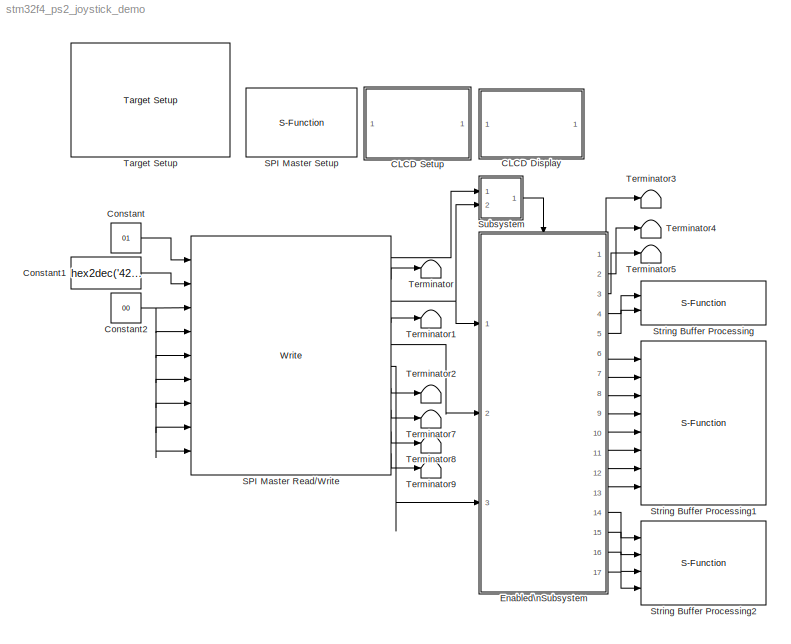
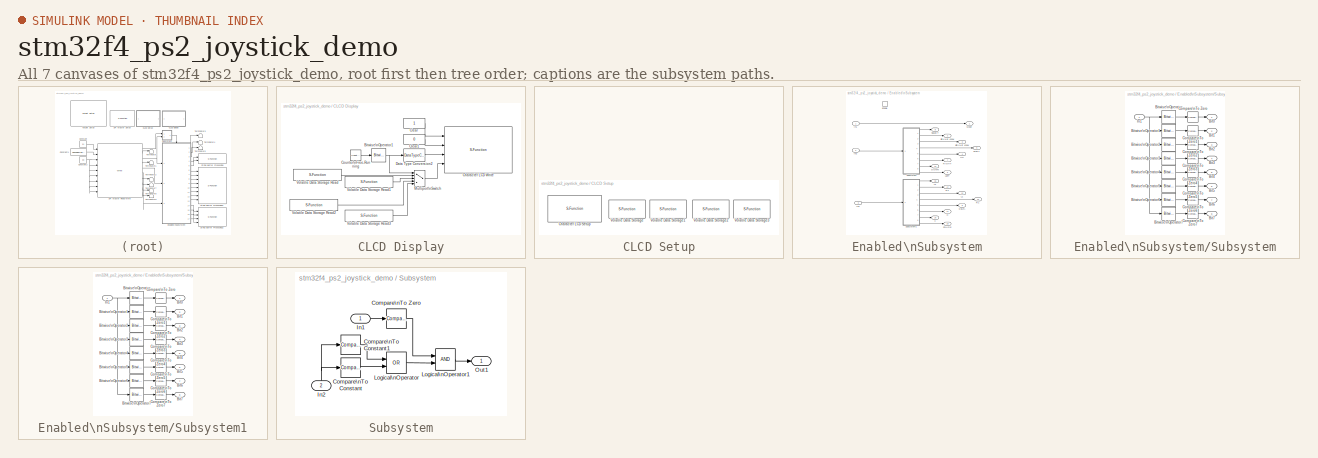
[diagram: thumbnail index - all 7 canvases of the model, root first then tree order]
MODEL stm32f4_ps2_joystick_demo
KIND model
CONFIG PreLoadFcn = waijung.modelPreload; % Required for working with Waijung Blockset. Do not remove.
BLOCK [SubSystem] CLCD Display
  FunctionWithSeparateData = off
  MaskHideContents = off
  MinAlgLoopOccurrences = off
  Opaque = off
  Ports = []
  PropExecContextOutsideSubsystem = off
  RTWSystemCode = Auto
  RequestExecContextInheritance = off
BLOCK [Reference] CLCD Display/Bitwise\nOperator1  REF=simulink/Logic and Bit\nOperations/Bitwise\nOperator
  BitMask = bin2dec('11')
  BitMaskRealWorld = Stored Integer
  NumInputPorts = 1
  Ports = [1, 1]
  SourceBlock = simulink/Logic and Bit\nOperations/Bitwise\nOperator
  SourceType = Bitwise Operator
  UseBitMask = on
  logicop = AND
BLOCK [S-Function] CLCD Display/Character LCD Write
  EnableBusSupport = off
  FunctionName = amg_clcd
  MaskCallbackString = amg_clcd_callback('configuration');||||||||||||||||amg_clcd_callback('usestringbuffer');||amg_clcd_callback('varname');|||amg_clcd_callback('confstr');|amg_clcd_callback('sampletime');|amg_clcd_callback('sampletimestr');|amg_clcd_callback('blockid');
  MaskDescription = Note for cmd:\n1 - Clear specified LCD line display before write data to LCD.\nOtherwise (e.g. 0) - Write data without clearing LCD Line.\n\nPosition:\nx = 0, First Character (from left to right)\ny = 0, Top Line
  MaskDisplay = text(0.5, 0.5, 'Module: CLCD1 (Write)\\nTs (sec): 0.01','ver','middle','hor','center');port_label('input', 1,'cmd');port_label('input', 2,'xpos');port_label('input', 3,'ypos');port_label('input', 4,'str');
  MaskEnableString = on,on,on,off,off,on,on,on,on,on,on,on,on,on,on,on,on,on,off,off,off,on,on,on,on
  MaskHelp = web(fullfile(waijungdocroot,'amg_clcd_write.htm'), '-browser')
  MaskIconFrame = on
  MaskIconOpaque = on
  MaskIconRotate = none
  MaskIconUnits = normalized
  MaskInitialization = amg_clcd_callback('init');
  MaskPortRotate = default
  MaskPromptString = Configuration:|Module:|LCD model:|Interface:|Number of lines:|Number of columns:|GPIO Output type:|GPIO control port:|GPIO control pin, RS:|GPIO control pin, RW:|GPIO control pin, EN:|GPIO data D[7:4] port|GPIO data pin, D4:|GPIO data pin, D5:|GPIO data pin, D6:|GPIO data pin, D7:|Use string buffer|String buffer|Variable name|Input type array|Output type array|Configuration string|Sample time (sec...<+46ch>
  MaskSelfModifiable = on
  MaskStyleString = popup(Setup|Transaction),popup(1|2|3|4),popup(amg CLCD Std),popup(4-bits),edit,edit,popup(Push-pull|Open-drain),popup(A|B|C|D|E|F|G|H|I),popup(0|1|2|3|4|5|6|7|8|9|10|11|12|13|14|15),popup(0|1|2|3|4|5|6|7|8|9|10|11|12|13|14|15),popup(0|1|2|3|4|5|6|7|8|9|10|11|12|13|14|15),popup(A|B|C|D|E|F|G|H|I),popup(0|1|2|3|4|5|6|7|8|9|10|11|12|13|14|15),popup(0|1|2|3|4|5|6|7|8|9|10|11|12|13|14|15),popup(0|1|2|3...<+163ch>
  MaskTabNameString = ,,,,,,,,,,,,,,,,,,,,,,,,
  MaskToolTipString = on,on,on,on,on,on,on,on,on,on,on,on,on,on,on,on,on,on,on,on,on,on,on,on,on
  MaskTunableValueString = off,off,off,off,off,off,off,off,off,off,off,off,off,off,off,off,off,off,off,off,off,off,off,off,off
  MaskType = amg_clcd
  MaskValueString = Transaction|1|amg CLCD Std|4-bits|4|20|Push-pull|E|15|13|11|A|7|5|3|1|off|lcdline1|CLCDSetupVolatileDataStorage_lcdline1|[4 -1 -1 -1 -1]|[0]|[\"4\",\"4\",\"20\",\"PP\",\"E\",\"15\",\"11\",\"13\",\"\",\"A\",\"\",\"\",\"\",\"\",\"7\",\"5\",\"3\",\"1\",\"0\",\"\",\"1\",\"0\",\"0\",\"0\",\"1\",\"0\",\"0\",\"0\",\"0\",\"stm32f4\"]|-1|0.01|CLCDDisplayCharacterLCDWrite
  MaskVarAliasString = ,,,,,,,,,,,,,,,,,,,,,,,,
  MaskVariables = configuration=&1;module=&2;model=&3;interface=&4;linecount=@5;columncount=@6;gpiotype=&7;controlport=&8;control_rs=&9;control_rw=&10;control_en=&11;dataport=&12;data0=&13;data1=&14;data2=&15;data3=&16;usestringbuffer=@17;stringbuffer=&18;varname=&19;inputtypearray=@20;outputtypearray=@21;confstr=&22;sampletime=@23;sampletimestr=&24;blockid=&25;
  MaskVisibilityString = off,on,off,off,off,off,off,off,off,off,off,off,off,off,off,off,on,off,off,off,off,off,on,off,off
  Parameters = module,configuration,inputtypearray,outputtypearray,confstr,sampletime,sampletimestr,blockid
  Ports = [4]
BLOCK [Constant] CLCD Display/Clear
  OutDataType = fixdt(1, 16)
  OutDataTypeMode = uint8
  OutDataTypeStr = uint8
  OutScaling = 2^0
BLOCK [Constant] CLCD Display/Clear1
  OutDataType = fixdt(1, 16)
  OutDataTypeMode = uint8
  OutDataTypeStr = uint8
  OutScaling = 2^0
  Value = 0
BLOCK [Reference] CLCD Display/Counter\nFree-Running  REF=simulink/Sources/Counter\nFree-Running
  FunctionWithSeparateData = off
  NumBits = 16
  Ports = [0, 1]
  RTWMemSecDataConstants = Inherit from model
  RTWMemSecDataInternal = Inherit from model
  RTWMemSecDataParameters = Inherit from model
  RTWMemSecFuncExecute = Inherit from model
  RTWMemSecFuncInitTerm = Inherit from model
  ShowPortLabels = FromPortIcon
  SourceBlock = simulink/Sources/Counter\nFree-Running
  SourceType = Counter Free-Running
  SystemSampleTime = -1
  tsamp = -1
BLOCK [DataTypeConversion] CLCD Display/Data Type Conversion2
  OutDataType = fixdt(1, 16)
  OutScaling = 2^0
  RndMeth = Floor
  SaturateOnIntegerOverflow = off
BLOCK [MultiPortSwitch] CLCD Display/Multiport\nSwitch
  InputSameDT = off
  Inputs = 4
  OutDataType = fixdt(1, 16)
  OutScaling = 2^0
  Ports = [5, 1]
  SaturateOnIntegerOverflow = off
  zeroidx = on
BLOCK [S-Function] CLCD Display/Volatile Data Storage Read
  EnableBusSupport = off
  FunctionName = waijung_vdata_read
  MaskCallbackString = waijung_vdata_read_callback('storagename');|waijung_vdata_read_callback('varname');|waijung_vdata_read_callback('sampletime');|waijung_vdata_read_callback('sampletimestr');|waijung_vdata_read_callback('blockid');|waijung_vdata_read_callback('storagetype');|  <repeated x4 — deduplicated; at blocks: Volatile Data Storage Read, Volatile Data Storage Read1, Volatile Data Storage Read2, Volatile Data Storage Read3>
  MaskDescription = This block implements read data from a buffer.
  MaskDisplay = text(0.05, 0.5, 'Buffer: lcdline1','ver','middle','hor','left');port_label('output',1,'D1(string)')
  MaskEnableString = on,off,on,off,off,on,on
  MaskHelp = web(fullfile(waijungdocroot,'waijung_vdata_read.htm'))
  MaskIconFrame = on
  MaskIconOpaque = on
  MaskIconRotate = none
  MaskIconUnits = normalized
  MaskInitialization = waijung_vdata_read_callback('init');
  MaskPortRotate = default
  MaskPromptString = Storage Name|Variable name|Sample time (sec)|Compiled sample time (sec) in string|BlockID|Data type|Data type string
  MaskSelfModifiable = on
  MaskStyleString = popup(lcdline1|lcdline2|lcdline3|lcdline4),edit,edit,edit,edit,edit,edit
  MaskTabNameString = ,,,,,,
  MaskToolTipString = on,on,on,on,on,on,on
  MaskTunableValueString = off,off,off,off,off,off,off
  MaskType = waijung_vdata_read
  MaskValueString = lcdline1|CLCDSetupVolatileDataStorage_lcdline1|inf|0.01|CLCDDisplayVolatileDataStorageRead|string|uint32_t
  MaskVarAliasString = ,,,,,,
  MaskVariables = storagename=&1;varname=&2;sampletime=@3;sampletimestr=&4;blockid=&5;storagetype=&6;storagetypestr=&7;
  MaskVisibilityString = on,off,on,off,off,off,off
  Parameters = storagename,varname,sampletime,sampletimestr,blockid,storagetype,storagetypestr
  Ports = [0, 1]
BLOCK [S-Function] CLCD Display/Volatile Data Storage Read1
  EnableBusSupport = off
  FunctionName = waijung_vdata_read
  MaskDescription = This block implements read data from a buffer.
  MaskDisplay = text(0.05, 0.5, 'Buffer: lcdline2','ver','middle','hor','left');port_label('output',1,'D1(string)')
  MaskEnableString = on,off,on,off,off,on,on
  MaskHelp = web(fullfile(waijungdocroot,'waijung_vdata_read.htm'))
  MaskIconFrame = on
  MaskIconOpaque = on
  MaskIconRotate = none
  MaskIconUnits = normalized
  MaskInitialization = waijung_vdata_read_callback('init');
  MaskPortRotate = default
  MaskPromptString = Storage Name|Variable name|Sample time (sec)|Compiled sample time (sec) in string|BlockID|Data type|Data type string
  MaskSelfModifiable = on
  MaskStyleString = popup(lcdline1|lcdline2|lcdline3|lcdline4),edit,edit,edit,edit,edit,edit
  MaskTabNameString = ,,,,,,
  MaskToolTipString = on,on,on,on,on,on,on
  MaskTunableValueString = off,off,off,off,off,off,off
  MaskType = waijung_vdata_read
  MaskValueString = lcdline2|CLCDSetupVolatileDataStorage1_lcdline2|inf|0.01|CLCDDisplayVolatileDataStorageRead1|string|uint32_t
  MaskVarAliasString = ,,,,,,
  MaskVariables = storagename=&1;varname=&2;sampletime=@3;sampletimestr=&4;blockid=&5;storagetype=&6;storagetypestr=&7;
  MaskVisibilityString = on,off,on,off,off,off,off
  Parameters = storagename,varname,sampletime,sampletimestr,blockid,storagetype,storagetypestr
  Ports = [0, 1]
BLOCK [S-Function] CLCD Display/Volatile Data Storage Read2
  EnableBusSupport = off
  FunctionName = waijung_vdata_read
  MaskDescription = This block implements read data from a buffer.
  MaskDisplay = text(0.05, 0.5, 'Buffer: lcdline3','ver','middle','hor','left');port_label('output',1,'D1(string)')
  MaskEnableString = on,off,on,off,off,on,on
  MaskHelp = web(fullfile(waijungdocroot,'waijung_vdata_read.htm'))
  MaskIconFrame = on
  MaskIconOpaque = on
  MaskIconRotate = none
  MaskIconUnits = normalized
  MaskInitialization = waijung_vdata_read_callback('init');
  MaskPortRotate = default
  MaskPromptString = Storage Name|Variable name|Sample time (sec)|Compiled sample time (sec) in string|BlockID|Data type|Data type string
  MaskSelfModifiable = on
  MaskStyleString = popup(lcdline1|lcdline2|lcdline3|lcdline4),edit,edit,edit,edit,edit,edit
  MaskTabNameString = ,,,,,,
  MaskToolTipString = on,on,on,on,on,on,on
  MaskTunableValueString = off,off,off,off,off,off,off
  MaskType = waijung_vdata_read
  MaskValueString = lcdline3|CLCDSetupVolatileDataStorage2_lcdline3|inf|0.01|CLCDDisplayVolatileDataStorageRead2|string|uint32_t
  MaskVarAliasString = ,,,,,,
  MaskVariables = storagename=&1;varname=&2;sampletime=@3;sampletimestr=&4;blockid=&5;storagetype=&6;storagetypestr=&7;
  MaskVisibilityString = on,off,on,off,off,off,off
  Parameters = storagename,varname,sampletime,sampletimestr,blockid,storagetype,storagetypestr
  Ports = [0, 1]
BLOCK [S-Function] CLCD Display/Volatile Data Storage Read3
  EnableBusSupport = off
  FunctionName = waijung_vdata_read
  MaskDescription = This block implements read data from a buffer.
  MaskDisplay = text(0.05, 0.5, 'Buffer: lcdline4','ver','middle','hor','left');port_label('output',1,'D1(string)')
  MaskEnableString = on,off,on,off,off,on,on
  MaskHelp = web(fullfile(waijungdocroot,'waijung_vdata_read.htm'))
  MaskIconFrame = on
  MaskIconOpaque = on
  MaskIconRotate = none
  MaskIconUnits = normalized
  MaskInitialization = waijung_vdata_read_callback('init');
  MaskPortRotate = default
  MaskPromptString = Storage Name|Variable name|Sample time (sec)|Compiled sample time (sec) in string|BlockID|Data type|Data type string
  MaskSelfModifiable = on
  MaskStyleString = popup(lcdline1|lcdline2|lcdline3|lcdline4),edit,edit,edit,edit,edit,edit
  MaskTabNameString = ,,,,,,
  MaskToolTipString = on,on,on,on,on,on,on
  MaskTunableValueString = off,off,off,off,off,off,off
  MaskType = waijung_vdata_read
  MaskValueString = lcdline4|CLCDSetupVolatileDataStorage3_lcdline4|inf|0.01|CLCDDisplayVolatileDataStorageRead3|string|uint32_t
  MaskVarAliasString = ,,,,,,
  MaskVariables = storagename=&1;varname=&2;sampletime=@3;sampletimestr=&4;blockid=&5;storagetype=&6;storagetypestr=&7;
  MaskVisibilityString = on,off,on,off,off,off,off
  Parameters = storagename,varname,sampletime,sampletimestr,blockid,storagetype,storagetypestr
  Ports = [0, 1]
BLOCK [SubSystem] CLCD Setup
  FunctionWithSeparateData = off
  MaskHideContents = off
  MinAlgLoopOccurrences = off
  Opaque = off
  Ports = []
  PropExecContextOutsideSubsystem = off
  RTWSystemCode = Auto
  RequestExecContextInheritance = off
BLOCK [S-Function] CLCD Setup/Character LCD Setup
  EnableBusSupport = off
  FunctionName = amg_clcd
  MaskCallbackString = amg_clcd_callback('configuration');||||||||||||||||amg_clcd_callback('usestringbuffer');||amg_clcd_callback('varname');|||amg_clcd_callback('confstr');|amg_clcd_callback('sampletime');|amg_clcd_callback('sampletimestr');|amg_clcd_callback('blockid');
  MaskDisplay = text(0.5, 0.5, 'Module: CLCD1 (Setup)\\nInterface: 4-bits\\nCntrl: E7/E8/E9\\nD[7:4]: E12/E13/E14/E15\\nTs (sec): 0.01','ver','middle','hor','center');
  MaskEnableString = on,on,on,off,off,on,on,on,on,on,on,on,on,on,on,on,on,on,off,off,off,on,on,on,on
  MaskHelp = web(fullfile(waijungdocroot,'amg_clcd_setup.htm'), '-browser')
  MaskIconFrame = on
  MaskIconOpaque = on
  MaskIconRotate = none
  MaskIconUnits = normalized
  MaskInitialization = amg_clcd_callback('init');
  MaskPortRotate = default
  MaskPromptString = Configuration:|Module:|LCD model:|Interface:|Number of lines (2 or 4):|Number of columns:|GPIO Output type:|GPIO control port:|GPIO control pin, RS:|GPIO control pin, RW:|GPIO control pin, EN:|GPIO data D[7:4] port|GPIO data pin, D4:|GPIO data pin, D5:|GPIO data pin, D6:|GPIO data pin, D7:|Use string buffer|String buffer|Variable name|Input type array|Output type array|Configuration string|Sample ...<+55ch>
  MaskSelfModifiable = on
  MaskStyleString = popup(Setup|Transaction),popup(1|2|3|4),popup(amg CLCD Std),popup(4-bits),edit,edit,popup(Push-pull|Open-drain),popup(A|B|C|D|E|F|G|H|I),popup(0|1|2|3|4|5|6|7|8|9|10|11|12|13|14|15),popup(0|1|2|3|4|5|6|7|8|9|10|11|12|13|14|15),popup(0|1|2|3|4|5|6|7|8|9|10|11|12|13|14|15),popup(A|B|C|D|E|F|G|H|I),popup(0|1|2|3|4|5|6|7|8|9|10|11|12|13|14|15),popup(0|1|2|3|4|5|6|7|8|9|10|11|12|13|14|15),popup(0|1|2|3...<+135ch>
  MaskTabNameString = ,,,,,,,,,,,,,,,,,,,,,,,,
  MaskToolTipString = on,on,on,on,on,on,on,on,on,on,on,on,on,on,on,on,on,on,on,on,on,on,on,on,on
  MaskTunableValueString = off,off,off,off,off,off,off,off,off,off,off,off,off,off,off,off,off,off,off,off,off,off,off,off,off
  MaskType = amg_clcd
  MaskValueString = Setup|1|amg CLCD Std|4-bits|4|16|Push-pull|E|7|8|9|E|12|13|14|15|off|<empty>||[0]|[0]|[\"4\",\"4\",\"16\",\"PP\",\"E\",\"7\",\"9\",\"8\",\"\",\"E\",\"\",\"\",\"\",\"\",\"12\",\"13\",\"14\",\"15\",\"0\",\"\",\"0\",\"0\",\"0\",\"0\",\"1\",\"0\",\"0\",\"0\",\"0\",\"stm32f4\"]|-1|0.01|CLCDSetupCharacterLCDSetup
  MaskVarAliasString = ,,,,,,,,,,,,,,,,,,,,,,,,
  MaskVariables = configuration=&1;module=&2;model=&3;interface=&4;linecount=@5;columncount=@6;gpiotype=&7;controlport=&8;control_rs=&9;control_rw=&10;control_en=&11;dataport=&12;data0=&13;data1=&14;data2=&15;data3=&16;usestringbuffer=@17;stringbuffer=&18;varname=&19;inputtypearray=@20;outputtypearray=@21;confstr=&22;sampletime=@23;sampletimestr=&24;blockid=&25;
  MaskVisibilityString = off,on,off,on,off,on,on,on,on,on,on,on,on,on,on,on,off,off,off,off,off,off,off,off,off
  Parameters = module,configuration,inputtypearray,outputtypearray,confstr,sampletime,sampletimestr,blockid
  Ports = []
BLOCK [S-Function] CLCD Setup/Volatile Data Storage
  EnableBusSupport = off
  FunctionName = waijung_vdata_storage
  MaskCallbackString = waijung_vdata_storage_callback('storagetype');|waijung_vdata_storage_callback('storagename');|waijung_vdata_storage_callback('initval');|waijung_vdata_storage_callback('varname');||waijung_vdata_storage_callback('initvalstring');|waijung_vdata_storage_callback('sampletime');|waijung_vdata_storage_callback('sampletimestr');|waijung_vdata_storage_callback('blockid');|  <repeated x4 — deduplicated; at blocks: Volatile Data Storage, Volatile Data Storage1, Volatile Data Storage2, Volatile Data Storage3>
  MaskDescription = This block implements a non volatile Data Storage.
  MaskDisplay = text(0.5, 0.5, '! Out of date','ver','middle','hor','center')
  MaskEnableString = on,on,on,off,on,on,on,off,off,on
  MaskHelp = web(fullfile(waijungdocroot,'waijung_vdata_storage.htm'))
  MaskIconFrame = on
  MaskIconOpaque = on
  MaskIconRotate = none
  MaskIconUnits = normalized
  MaskInitialization = waijung_vdata_storage_callback('init');
  MaskPortRotate = default
  MaskPromptString = Storage Type|Storage Name (must be a valid variable name)|Initial value (Apply at Power on Reset only)|Variable name|Size (bytes)|Initial value (Apply at Power on Reset only)|Sample time (sec)|Compiled sample time (sec) in string|BlockID|Type string  <repeated x4 — deduplicated; at blocks: Volatile Data Storage, Volatile Data Storage1, Volatile Data Storage2, Volatile Data Storage3>
  MaskSelfModifiable = on
  MaskStyleString = popup(double|single|uint32|int32|uint16|int16|uint8|int8|string),edit,edit,edit,edit,edit,edit,edit,edit,edit
  MaskTabNameString = ,,,,,,,,,
  MaskToolTipString = on,on,on,on,on,on,on,on,on,on
  MaskTunableValueString = off,off,off,off,off,off,off,off,off,off
  MaskType = waijung_vdata_storage
  MaskValueString = string|lcdline1|0|CLCDSetupVolatileDataStorage_lcdline1|20|'Joystick Demo'|-1|0.01|CLCDSetupVolatileDataStorage|char
  MaskVarAliasString = ,,,,,,,,,
  MaskVariables = storagetype=&1;storagename=&2;initval=@3;varname=&4;buffersize=@5;initvalstring=@6;sampletime=@7;sampletimestr=&8;blockid=&9;storagetypestr=&10;
  MaskVisibilityString = on,on,off,off,on,on,on,off,off,off
  Parameters = storagetype,storagename,initval,varname,buffersize,initvalstring,sampletime,sampletimestr,blockid,storagetypestr
  Ports = []
BLOCK [S-Function] CLCD Setup/Volatile Data Storage1
  EnableBusSupport = off
  FunctionName = waijung_vdata_storage
  MaskDescription = This block implements a non volatile Data Storage.
  MaskDisplay = text(0.5, 0.5, '! Out of date','ver','middle','hor','center')
  MaskEnableString = on,on,on,off,on,on,on,off,off,on
  MaskHelp = web(fullfile(waijungdocroot,'waijung_vdata_storage.htm'))
  MaskIconFrame = on
  MaskIconOpaque = on
  MaskIconRotate = none
  MaskIconUnits = normalized
  MaskInitialization = waijung_vdata_storage_callback('init');
  MaskPortRotate = default
  MaskSelfModifiable = on
  MaskStyleString = popup(double|single|uint32|int32|uint16|int16|uint8|int8|string),edit,edit,edit,edit,edit,edit,edit,edit,edit
  MaskTabNameString = ,,,,,,,,,
  MaskToolTipString = on,on,on,on,on,on,on,on,on,on
  MaskTunableValueString = off,off,off,off,off,off,off,off,off,off
  MaskType = waijung_vdata_storage
  MaskValueString = string|lcdline2|0|CLCDSetupVolatileDataStorage1_lcdline2|20|''|-1|0.01|CLCDSetupVolatileDataStorage1|char
  MaskVarAliasString = ,,,,,,,,,
  MaskVariables = storagetype=&1;storagename=&2;initval=@3;varname=&4;buffersize=@5;initvalstring=@6;sampletime=@7;sampletimestr=&8;blockid=&9;storagetypestr=&10;
  MaskVisibilityString = on,on,off,off,on,on,on,off,off,off
  Parameters = storagetype,storagename,initval,varname,buffersize,initvalstring,sampletime,sampletimestr,blockid,storagetypestr
  Ports = []
BLOCK [S-Function] CLCD Setup/Volatile Data Storage2
  EnableBusSupport = off
  FunctionName = waijung_vdata_storage
  MaskDescription = This block implements a non volatile Data Storage.
  MaskDisplay = text(0.5, 0.5, '! Out of date','ver','middle','hor','center')
  MaskEnableString = on,on,on,off,on,on,on,off,off,on
  MaskHelp = web(fullfile(waijungdocroot,'waijung_vdata_storage.htm'))
  MaskIconFrame = on
  MaskIconOpaque = on
  MaskIconRotate = none
  MaskIconUnits = normalized
  MaskInitialization = waijung_vdata_storage_callback('init');
  MaskPortRotate = default
  MaskSelfModifiable = on
  MaskStyleString = popup(double|single|uint32|int32|uint16|int16|uint8|int8|string),edit,edit,edit,edit,edit,edit,edit,edit,edit
  MaskTabNameString = ,,,,,,,,,
  MaskToolTipString = on,on,on,on,on,on,on,on,on,on
  MaskTunableValueString = off,off,off,off,off,off,off,off,off,off
  MaskType = waijung_vdata_storage
  MaskValueString = string|lcdline3|0|CLCDSetupVolatileDataStorage2_lcdline3|20|''|-1|0.01|CLCDSetupVolatileDataStorage2|char
  MaskVarAliasString = ,,,,,,,,,
  MaskVariables = storagetype=&1;storagename=&2;initval=@3;varname=&4;buffersize=@5;initvalstring=@6;sampletime=@7;sampletimestr=&8;blockid=&9;storagetypestr=&10;
  MaskVisibilityString = on,on,off,off,on,on,on,off,off,off
  Parameters = storagetype,storagename,initval,varname,buffersize,initvalstring,sampletime,sampletimestr,blockid,storagetypestr
  Ports = []
BLOCK [S-Function] CLCD Setup/Volatile Data Storage3
  EnableBusSupport = off
  FunctionName = waijung_vdata_storage
  MaskDescription = This block implements a non volatile Data Storage.
  MaskDisplay = text(0.5, 0.5, '! Out of date','ver','middle','hor','center')
  MaskEnableString = on,on,on,off,on,on,on,off,off,on
  MaskHelp = web(fullfile(waijungdocroot,'waijung_vdata_storage.htm'))
  MaskIconFrame = on
  MaskIconOpaque = on
  MaskIconRotate = none
  MaskIconUnits = normalized
  MaskInitialization = waijung_vdata_storage_callback('init');
  MaskPortRotate = default
  MaskSelfModifiable = on
  MaskStyleString = popup(double|single|uint32|int32|uint16|int16|uint8|int8|string),edit,edit,edit,edit,edit,edit,edit,edit,edit
  MaskTabNameString = ,,,,,,,,,
  MaskToolTipString = on,on,on,on,on,on,on,on,on,on
  MaskTunableValueString = off,off,off,off,off,off,off,off,off,off
  MaskType = waijung_vdata_storage
  MaskValueString = string|lcdline4|0|CLCDSetupVolatileDataStorage3_lcdline4|20|''|-1|0.01|CLCDSetupVolatileDataStorage3|char
  MaskVarAliasString = ,,,,,,,,,
  MaskVariables = storagetype=&1;storagename=&2;initval=@3;varname=&4;buffersize=@5;initvalstring=@6;sampletime=@7;sampletimestr=&8;blockid=&9;storagetypestr=&10;
  MaskVisibilityString = on,on,off,off,on,on,on,off,off,off
  Parameters = storagetype,storagename,initval,varname,buffersize,initvalstring,sampletime,sampletimestr,blockid,storagetypestr
  Ports = []
BLOCK [Constant] Constant
  OutDataType = fixdt(1, 16)
  OutDataTypeMode = uint8
  OutDataTypeStr = uint8
  OutScaling = 2^0
  Value = 01
BLOCK [Constant] Constant1
  OutDataType = fixdt(1, 16)
  OutDataTypeMode = uint8
  OutDataTypeStr = uint8
  OutScaling = 2^0
  Value = hex2dec('42')
BLOCK [Constant] Constant2
  OutDataType = fixdt(1, 16)
  OutDataTypeMode = uint8
  OutDataTypeStr = uint8
  OutScaling = 2^0
  Value = 00
BLOCK [SubSystem] Enabled\nSubsystem
  FunctionWithSeparateData = off
  MaskHideContents = off
  MinAlgLoopOccurrences = off
  Opaque = off
  Ports = [3, 17, 1]
  PropExecContextOutsideSubsystem = off
  RTWSystemCode = Auto
  RequestExecContextInheritance = off
  TreatAsAtomicUnit = on
BLOCK [Outport] Enabled\nSubsystem/Bit1-Not know
  IconDisplay = Port number
  OutDataType = fixdt(1, 16)
  OutScaling = 2^0
  Port = 2
BLOCK [Outport] Enabled\nSubsystem/Bit2-Not know
  IconDisplay = Port number
  OutDataType = fixdt(1, 16)
  OutScaling = 2^0
  Port = 3
BLOCK [Outport] Enabled\nSubsystem/DELTA
  IconDisplay = Port number
  OutDataType = fixdt(1, 16)
  OutScaling = 2^0
  Port = 5
BLOCK [Outport] Enabled\nSubsystem/DOWN
  IconDisplay = Port number
  OutDataType = fixdt(1, 16)
  OutScaling = 2^0
  Port = 14
BLOCK [EnablePort] Enabled\nSubsystem/Enable
  Ports = []
BLOCK [Inport] Enabled\nSubsystem/In1
  IconDisplay = Port number
  OutDataType = fixdt(1, 16)
  OutScaling = 2^0
BLOCK [Inport] Enabled\nSubsystem/In2
  IconDisplay = Port number
  OutDataType = fixdt(1, 16)
  OutScaling = 2^0
  Port = 2
BLOCK [Inport] Enabled\nSubsystem/In3
  IconDisplay = Port number
  OutDataType = fixdt(1, 16)
  OutScaling = 2^0
  Port = 3
BLOCK [Outport] Enabled\nSubsystem/L1
  IconDisplay = Port number
  OutDataType = fixdt(1, 16)
  OutScaling = 2^0
  Port = 12
BLOCK [Outport] Enabled\nSubsystem/L2
  IconDisplay = Port number
  OutDataType = fixdt(1, 16)
  OutScaling = 2^0
  Port = 16
BLOCK [Outport] Enabled\nSubsystem/LEFT
  IconDisplay = Port number
  OutDataType = fixdt(1, 16)
  OutScaling = 2^0
  Port = 6
BLOCK [Outport] Enabled\nSubsystem/Mode
  IconDisplay = Port number
  OutDataType = fixdt(1, 16)
  OutScaling = 2^0
BLOCK [Outport] Enabled\nSubsystem/O
  IconDisplay = Port number
  OutDataType = fixdt(1, 16)
  OutScaling = 2^0
  Port = 11
BLOCK [Outport] Enabled\nSubsystem/R1
  IconDisplay = Port number
  OutDataType = fixdt(1, 16)
  OutScaling = 2^0
  Port = 13
BLOCK [Outport] Enabled\nSubsystem/R2
  IconDisplay = Port number
  OutDataType = fixdt(1, 16)
  OutScaling = 2^0
  Port = 17
BLOCK [Outport] Enabled\nSubsystem/RIGHT
  IconDisplay = Port number
  OutDataType = fixdt(1, 16)
  OutScaling = 2^0
  Port = 7
BLOCK [Outport] Enabled\nSubsystem/SELECT
  IconDisplay = Port number
  OutDataType = fixdt(1, 16)
  OutScaling = 2^0
  Port = 8
BLOCK [Outport] Enabled\nSubsystem/SQURE
  IconDisplay = Port number
  OutDataType = fixdt(1, 16)
  OutScaling = 2^0
  Port = 10
BLOCK [Outport] Enabled\nSubsystem/START
  IconDisplay = Port number
  OutDataType = fixdt(1, 16)
  OutScaling = 2^0
  Port = 9
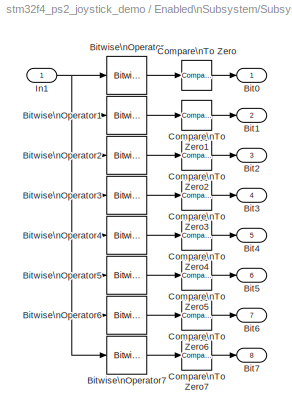
BLOCK [SubSystem] Enabled\nSubsystem/Subsystem
  FunctionWithSeparateData = off
  MaskHideContents = off
  MinAlgLoopOccurrences = off
  Opaque = off
  Ports = [1, 8]
  PropExecContextOutsideSubsystem = off
  RTWSystemCode = Auto
  RequestExecContextInheritance = off
BLOCK [Outport] Enabled\nSubsystem/Subsystem/Bit0
  IconDisplay = Port number
BLOCK [Outport] Enabled\nSubsystem/Subsystem/Bit1
  IconDisplay = Port number
  Port = 2
BLOCK [Outport] Enabled\nSubsystem/Subsystem/Bit2
  IconDisplay = Port number
  Port = 3
BLOCK [Outport] Enabled\nSubsystem/Subsystem/Bit3
  IconDisplay = Port number
  Port = 4
BLOCK [Outport] Enabled\nSubsystem/Subsystem/Bit4
  IconDisplay = Port number
  Port = 5
BLOCK [Outport] Enabled\nSubsystem/Subsystem/Bit5
  IconDisplay = Port number
  Port = 6
BLOCK [Outport] Enabled\nSubsystem/Subsystem/Bit6
  IconDisplay = Port number
  Port = 7
BLOCK [Outport] Enabled\nSubsystem/Subsystem/Bit7
  IconDisplay = Port number
  Port = 8
BLOCK [Reference] Enabled\nSubsystem/Subsystem/Bitwise\nOperator  REF=simulink/Logic and Bit\nOperations/Bitwise\nOperator
  BitMask = 1
  BitMaskRealWorld = Stored Integer
  NumInputPorts = 1
  Ports = [1, 1]
  SourceBlock = simulink/Logic and Bit\nOperations/Bitwise\nOperator
  SourceType = Bitwise Operator
  UseBitMask = on
  logicop = AND
BLOCK [Reference] Enabled\nSubsystem/Subsystem/Bitwise\nOperator1  REF=simulink/Logic and Bit\nOperations/Bitwise\nOperator
  BitMask = 2
  BitMaskRealWorld = Stored Integer
  NumInputPorts = 1
  Ports = [1, 1]
  SourceBlock = simulink/Logic and Bit\nOperations/Bitwise\nOperator
  SourceType = Bitwise Operator
  UseBitMask = on
  logicop = AND
BLOCK [Reference] Enabled\nSubsystem/Subsystem/Bitwise\nOperator2  REF=simulink/Logic and Bit\nOperations/Bitwise\nOperator
  BitMask = 4
  BitMaskRealWorld = Stored Integer
  NumInputPorts = 1
  Ports = [1, 1]
  SourceBlock = simulink/Logic and Bit\nOperations/Bitwise\nOperator
  SourceType = Bitwise Operator
  UseBitMask = on
  logicop = AND
BLOCK [Reference] Enabled\nSubsystem/Subsystem/Bitwise\nOperator3  REF=simulink/Logic and Bit\nOperations/Bitwise\nOperator
  BitMask = 8
  BitMaskRealWorld = Stored Integer
  NumInputPorts = 1
  Ports = [1, 1]
  SourceBlock = simulink/Logic and Bit\nOperations/Bitwise\nOperator
  SourceType = Bitwise Operator
  UseBitMask = on
  logicop = AND
BLOCK [Reference] Enabled\nSubsystem/Subsystem/Bitwise\nOperator4  REF=simulink/Logic and Bit\nOperations/Bitwise\nOperator
  BitMask = 16
  BitMaskRealWorld = Stored Integer
  NumInputPorts = 1
  Ports = [1, 1]
  SourceBlock = simulink/Logic and Bit\nOperations/Bitwise\nOperator
  SourceType = Bitwise Operator
  UseBitMask = on
  logicop = AND
BLOCK [Reference] Enabled\nSubsystem/Subsystem/Bitwise\nOperator5  REF=simulink/Logic and Bit\nOperations/Bitwise\nOperator
  BitMask = 32
  BitMaskRealWorld = Stored Integer
  NumInputPorts = 1
  Ports = [1, 1]
  SourceBlock = simulink/Logic and Bit\nOperations/Bitwise\nOperator
  SourceType = Bitwise Operator
  UseBitMask = on
  logicop = AND
BLOCK [Reference] Enabled\nSubsystem/Subsystem/Bitwise\nOperator6  REF=simulink/Logic and Bit\nOperations/Bitwise\nOperator
  BitMask = 64
  BitMaskRealWorld = Stored Integer
  NumInputPorts = 1
  Ports = [1, 1]
  SourceBlock = simulink/Logic and Bit\nOperations/Bitwise\nOperator
  SourceType = Bitwise Operator
  UseBitMask = on
  logicop = AND
BLOCK [Reference] Enabled\nSubsystem/Subsystem/Bitwise\nOperator7  REF=simulink/Logic and Bit\nOperations/Bitwise\nOperator
  BitMask = 128
  BitMaskRealWorld = Stored Integer
  NumInputPorts = 1
  Ports = [1, 1]
  SourceBlock = simulink/Logic and Bit\nOperations/Bitwise\nOperator
  SourceType = Bitwise Operator
  UseBitMask = on
  logicop = AND
BLOCK [Reference] Enabled\nSubsystem/Subsystem/Compare\nTo Zero  REF=simulink/Logic and Bit\nOperations/Compare\nTo Zero
  FunctionWithSeparateData = off
  LogicOutDataTypeMode = uint8
  Ports = [1, 1]
  RTWMemSecDataConstants = Inherit from model
  RTWMemSecDataInternal = Inherit from model
  RTWMemSecDataParameters = Inherit from model
  RTWMemSecFuncExecute = Inherit from model
  RTWMemSecFuncInitTerm = Inherit from model
  ShowPortLabels = FromPortIcon
  SourceBlock = simulink/Logic and Bit\nOperations/Compare\nTo Zero
  SourceType = Compare To Zero
  SystemSampleTime = -1
  ZeroCross = off
  relop = ==
BLOCK [Reference] Enabled\nSubsystem/Subsystem/Compare\nTo Zero1  REF=simulink/Logic and Bit\nOperations/Compare\nTo Zero
  FunctionWithSeparateData = off
  LogicOutDataTypeMode = uint8
  Ports = [1, 1]
  RTWMemSecDataConstants = Inherit from model
  RTWMemSecDataInternal = Inherit from model
  RTWMemSecDataParameters = Inherit from model
  RTWMemSecFuncExecute = Inherit from model
  RTWMemSecFuncInitTerm = Inherit from model
  ShowPortLabels = FromPortIcon
  SourceBlock = simulink/Logic and Bit\nOperations/Compare\nTo Zero
  SourceType = Compare To Zero
  SystemSampleTime = -1
  ZeroCross = off
  relop = ==
BLOCK [Reference] Enabled\nSubsystem/Subsystem/Compare\nTo Zero2  REF=simulink/Logic and Bit\nOperations/Compare\nTo Zero
  FunctionWithSeparateData = off
  LogicOutDataTypeMode = uint8
  Ports = [1, 1]
  RTWMemSecDataConstants = Inherit from model
  RTWMemSecDataInternal = Inherit from model
  RTWMemSecDataParameters = Inherit from model
  RTWMemSecFuncExecute = Inherit from model
  RTWMemSecFuncInitTerm = Inherit from model
  ShowPortLabels = FromPortIcon
  SourceBlock = simulink/Logic and Bit\nOperations/Compare\nTo Zero
  SourceType = Compare To Zero
  SystemSampleTime = -1
  ZeroCross = off
  relop = ==
BLOCK [Reference] Enabled\nSubsystem/Subsystem/Compare\nTo Zero3  REF=simulink/Logic and Bit\nOperations/Compare\nTo Zero
  FunctionWithSeparateData = off
  LogicOutDataTypeMode = uint8
  Ports = [1, 1]
  RTWMemSecDataConstants = Inherit from model
  RTWMemSecDataInternal = Inherit from model
  RTWMemSecDataParameters = Inherit from model
  RTWMemSecFuncExecute = Inherit from model
  RTWMemSecFuncInitTerm = Inherit from model
  ShowPortLabels = FromPortIcon
  SourceBlock = simulink/Logic and Bit\nOperations/Compare\nTo Zero
  SourceType = Compare To Zero
  SystemSampleTime = -1
  ZeroCross = off
  relop = ==
BLOCK [Reference] Enabled\nSubsystem/Subsystem/Compare\nTo Zero4  REF=simulink/Logic and Bit\nOperations/Compare\nTo Zero
  FunctionWithSeparateData = off
  LogicOutDataTypeMode = uint8
  Ports = [1, 1]
  RTWMemSecDataConstants = Inherit from model
  RTWMemSecDataInternal = Inherit from model
  RTWMemSecDataParameters = Inherit from model
  RTWMemSecFuncExecute = Inherit from model
  RTWMemSecFuncInitTerm = Inherit from model
  ShowPortLabels = FromPortIcon
  SourceBlock = simulink/Logic and Bit\nOperations/Compare\nTo Zero
  SourceType = Compare To Zero
  SystemSampleTime = -1
  ZeroCross = off
  relop = ==
BLOCK [Reference] Enabled\nSubsystem/Subsystem/Compare\nTo Zero5  REF=simulink/Logic and Bit\nOperations/Compare\nTo Zero
  FunctionWithSeparateData = off
  LogicOutDataTypeMode = uint8
  Ports = [1, 1]
  RTWMemSecDataConstants = Inherit from model
  RTWMemSecDataInternal = Inherit from model
  RTWMemSecDataParameters = Inherit from model
  RTWMemSecFuncExecute = Inherit from model
  RTWMemSecFuncInitTerm = Inherit from model
  ShowPortLabels = FromPortIcon
  SourceBlock = simulink/Logic and Bit\nOperations/Compare\nTo Zero
  SourceType = Compare To Zero
  SystemSampleTime = -1
  ZeroCross = off
  relop = ==
BLOCK [Reference] Enabled\nSubsystem/Subsystem/Compare\nTo Zero6  REF=simulink/Logic and Bit\nOperations/Compare\nTo Zero
  FunctionWithSeparateData = off
  LogicOutDataTypeMode = uint8
  Ports = [1, 1]
  RTWMemSecDataConstants = Inherit from model
  RTWMemSecDataInternal = Inherit from model
  RTWMemSecDataParameters = Inherit from model
  RTWMemSecFuncExecute = Inherit from model
  RTWMemSecFuncInitTerm = Inherit from model
  ShowPortLabels = FromPortIcon
  SourceBlock = simulink/Logic and Bit\nOperations/Compare\nTo Zero
  SourceType = Compare To Zero
  SystemSampleTime = -1
  ZeroCross = off
  relop = ==
BLOCK [Reference] Enabled\nSubsystem/Subsystem/Compare\nTo Zero7  REF=simulink/Logic and Bit\nOperations/Compare\nTo Zero
  FunctionWithSeparateData = off
  LogicOutDataTypeMode = uint8
  Ports = [1, 1]
  RTWMemSecDataConstants = Inherit from model
  RTWMemSecDataInternal = Inherit from model
  RTWMemSecDataParameters = Inherit from model
  RTWMemSecFuncExecute = Inherit from model
  RTWMemSecFuncInitTerm = Inherit from model
  ShowPortLabels = FromPortIcon
  SourceBlock = simulink/Logic and Bit\nOperations/Compare\nTo Zero
  SourceType = Compare To Zero
  SystemSampleTime = -1
  ZeroCross = off
  relop = ==
BLOCK [Inport] Enabled\nSubsystem/Subsystem/In1
  IconDisplay = Port number
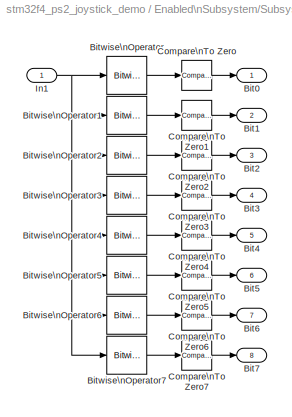
BLOCK [SubSystem] Enabled\nSubsystem/Subsystem1
  FunctionWithSeparateData = off
  MaskHideContents = off
  MinAlgLoopOccurrences = off
  Opaque = off
  Ports = [1, 8]
  PropExecContextOutsideSubsystem = off
  RTWSystemCode = Auto
  RequestExecContextInheritance = off
BLOCK [Outport] Enabled\nSubsystem/Subsystem1/Bit0
  IconDisplay = Port number
BLOCK [Outport] Enabled\nSubsystem/Subsystem1/Bit1
  IconDisplay = Port number
  Port = 2
BLOCK [Outport] Enabled\nSubsystem/Subsystem1/Bit2
  IconDisplay = Port number
  Port = 3
BLOCK [Outport] Enabled\nSubsystem/Subsystem1/Bit3
  IconDisplay = Port number
  Port = 4
BLOCK [Outport] Enabled\nSubsystem/Subsystem1/Bit4
  IconDisplay = Port number
  Port = 5
BLOCK [Outport] Enabled\nSubsystem/Subsystem1/Bit5
  IconDisplay = Port number
  Port = 6
BLOCK [Outport] Enabled\nSubsystem/Subsystem1/Bit6
  IconDisplay = Port number
  Port = 7
BLOCK [Outport] Enabled\nSubsystem/Subsystem1/Bit7
  IconDisplay = Port number
  Port = 8
BLOCK [Reference] Enabled\nSubsystem/Subsystem1/Bitwise\nOperator  REF=simulink/Logic and Bit\nOperations/Bitwise\nOperator
  BitMask = 1
  BitMaskRealWorld = Stored Integer
  NumInputPorts = 1
  Ports = [1, 1]
  SourceBlock = simulink/Logic and Bit\nOperations/Bitwise\nOperator
  SourceType = Bitwise Operator
  UseBitMask = on
  logicop = AND
BLOCK [Reference] Enabled\nSubsystem/Subsystem1/Bitwise\nOperator1  REF=simulink/Logic and Bit\nOperations/Bitwise\nOperator
  BitMask = 2
  BitMaskRealWorld = Stored Integer
  NumInputPorts = 1
  Ports = [1, 1]
  SourceBlock = simulink/Logic and Bit\nOperations/Bitwise\nOperator
  SourceType = Bitwise Operator
  UseBitMask = on
  logicop = AND
BLOCK [Reference] Enabled\nSubsystem/Subsystem1/Bitwise\nOperator2  REF=simulink/Logic and Bit\nOperations/Bitwise\nOperator
  BitMask = 4
  BitMaskRealWorld = Stored Integer
  NumInputPorts = 1
  Ports = [1, 1]
  SourceBlock = simulink/Logic and Bit\nOperations/Bitwise\nOperator
  SourceType = Bitwise Operator
  UseBitMask = on
  logicop = AND
BLOCK [Reference] Enabled\nSubsystem/Subsystem1/Bitwise\nOperator3  REF=simulink/Logic and Bit\nOperations/Bitwise\nOperator
  BitMask = 8
  BitMaskRealWorld = Stored Integer
  NumInputPorts = 1
  Ports = [1, 1]
  SourceBlock = simulink/Logic and Bit\nOperations/Bitwise\nOperator
  SourceType = Bitwise Operator
  UseBitMask = on
  logicop = AND
BLOCK [Reference] Enabled\nSubsystem/Subsystem1/Bitwise\nOperator4  REF=simulink/Logic and Bit\nOperations/Bitwise\nOperator
  BitMask = 16
  BitMaskRealWorld = Stored Integer
  NumInputPorts = 1
  Ports = [1, 1]
  SourceBlock = simulink/Logic and Bit\nOperations/Bitwise\nOperator
  SourceType = Bitwise Operator
  UseBitMask = on
  logicop = AND
BLOCK [Reference] Enabled\nSubsystem/Subsystem1/Bitwise\nOperator5  REF=simulink/Logic and Bit\nOperations/Bitwise\nOperator
  BitMask = 32
  BitMaskRealWorld = Stored Integer
  NumInputPorts = 1
  Ports = [1, 1]
  SourceBlock = simulink/Logic and Bit\nOperations/Bitwise\nOperator
  SourceType = Bitwise Operator
  UseBitMask = on
  logicop = AND
BLOCK [Reference] Enabled\nSubsystem/Subsystem1/Bitwise\nOperator6  REF=simulink/Logic and Bit\nOperations/Bitwise\nOperator
  BitMask = 64
  BitMaskRealWorld = Stored Integer
  NumInputPorts = 1
  Ports = [1, 1]
  SourceBlock = simulink/Logic and Bit\nOperations/Bitwise\nOperator
  SourceType = Bitwise Operator
  UseBitMask = on
  logicop = AND
BLOCK [Reference] Enabled\nSubsystem/Subsystem1/Bitwise\nOperator7  REF=simulink/Logic and Bit\nOperations/Bitwise\nOperator
  BitMask = 128
  BitMaskRealWorld = Stored Integer
  NumInputPorts = 1
  Ports = [1, 1]
  SourceBlock = simulink/Logic and Bit\nOperations/Bitwise\nOperator
  SourceType = Bitwise Operator
  UseBitMask = on
  logicop = AND
BLOCK [Reference] Enabled\nSubsystem/Subsystem1/Compare\nTo Zero  REF=simulink/Logic and Bit\nOperations/Compare\nTo Zero
  FunctionWithSeparateData = off
  LogicOutDataTypeMode = uint8
  Ports = [1, 1]
  RTWMemSecDataConstants = Inherit from model
  RTWMemSecDataInternal = Inherit from model
  RTWMemSecDataParameters = Inherit from model
  RTWMemSecFuncExecute = Inherit from model
  RTWMemSecFuncInitTerm = Inherit from model
  ShowPortLabels = FromPortIcon
  SourceBlock = simulink/Logic and Bit\nOperations/Compare\nTo Zero
  SourceType = Compare To Zero
  SystemSampleTime = -1
  ZeroCross = off
  relop = ==
BLOCK [Reference] Enabled\nSubsystem/Subsystem1/Compare\nTo Zero1  REF=simulink/Logic and Bit\nOperations/Compare\nTo Zero
  FunctionWithSeparateData = off
  LogicOutDataTypeMode = uint8
  Ports = [1, 1]
  RTWMemSecDataConstants = Inherit from model
  RTWMemSecDataInternal = Inherit from model
  RTWMemSecDataParameters = Inherit from model
  RTWMemSecFuncExecute = Inherit from model
  RTWMemSecFuncInitTerm = Inherit from model
  ShowPortLabels = FromPortIcon
  SourceBlock = simulink/Logic and Bit\nOperations/Compare\nTo Zero
  SourceType = Compare To Zero
  SystemSampleTime = -1
  ZeroCross = off
  relop = ==
BLOCK [Reference] Enabled\nSubsystem/Subsystem1/Compare\nTo Zero2  REF=simulink/Logic and Bit\nOperations/Compare\nTo Zero
  FunctionWithSeparateData = off
  LogicOutDataTypeMode = uint8
  Ports = [1, 1]
  RTWMemSecDataConstants = Inherit from model
  RTWMemSecDataInternal = Inherit from model
  RTWMemSecDataParameters = Inherit from model
  RTWMemSecFuncExecute = Inherit from model
  RTWMemSecFuncInitTerm = Inherit from model
  ShowPortLabels = FromPortIcon
  SourceBlock = simulink/Logic and Bit\nOperations/Compare\nTo Zero
  SourceType = Compare To Zero
  SystemSampleTime = -1
  ZeroCross = off
  relop = ==
BLOCK [Reference] Enabled\nSubsystem/Subsystem1/Compare\nTo Zero3  REF=simulink/Logic and Bit\nOperations/Compare\nTo Zero
  FunctionWithSeparateData = off
  LogicOutDataTypeMode = uint8
  Ports = [1, 1]
  RTWMemSecDataConstants = Inherit from model
  RTWMemSecDataInternal = Inherit from model
  RTWMemSecDataParameters = Inherit from model
  RTWMemSecFuncExecute = Inherit from model
  RTWMemSecFuncInitTerm = Inherit from model
  ShowPortLabels = FromPortIcon
  SourceBlock = simulink/Logic and Bit\nOperations/Compare\nTo Zero
  SourceType = Compare To Zero
  SystemSampleTime = -1
  ZeroCross = off
  relop = ==
BLOCK [Reference] Enabled\nSubsystem/Subsystem1/Compare\nTo Zero4  REF=simulink/Logic and Bit\nOperations/Compare\nTo Zero
  FunctionWithSeparateData = off
  LogicOutDataTypeMode = uint8
  Ports = [1, 1]
  RTWMemSecDataConstants = Inherit from model
  RTWMemSecDataInternal = Inherit from model
  RTWMemSecDataParameters = Inherit from model
  RTWMemSecFuncExecute = Inherit from model
  RTWMemSecFuncInitTerm = Inherit from model
  ShowPortLabels = FromPortIcon
  SourceBlock = simulink/Logic and Bit\nOperations/Compare\nTo Zero
  SourceType = Compare To Zero
  SystemSampleTime = -1
  ZeroCross = off
  relop = ==
BLOCK [Reference] Enabled\nSubsystem/Subsystem1/Compare\nTo Zero5  REF=simulink/Logic and Bit\nOperations/Compare\nTo Zero
  FunctionWithSeparateData = off
  LogicOutDataTypeMode = uint8
  Ports = [1, 1]
  RTWMemSecDataConstants = Inherit from model
  RTWMemSecDataInternal = Inherit from model
  RTWMemSecDataParameters = Inherit from model
  RTWMemSecFuncExecute = Inherit from model
  RTWMemSecFuncInitTerm = Inherit from model
  ShowPortLabels = FromPortIcon
  SourceBlock = simulink/Logic and Bit\nOperations/Compare\nTo Zero
  SourceType = Compare To Zero
  SystemSampleTime = -1
  ZeroCross = off
  relop = ==
BLOCK [Reference] Enabled\nSubsystem/Subsystem1/Compare\nTo Zero6  REF=simulink/Logic and Bit\nOperations/Compare\nTo Zero
  FunctionWithSeparateData = off
  LogicOutDataTypeMode = uint8
  Ports = [1, 1]
  RTWMemSecDataConstants = Inherit from model
  RTWMemSecDataInternal = Inherit from model
  RTWMemSecDataParameters = Inherit from model
  RTWMemSecFuncExecute = Inherit from model
  RTWMemSecFuncInitTerm = Inherit from model
  ShowPortLabels = FromPortIcon
  SourceBlock = simulink/Logic and Bit\nOperations/Compare\nTo Zero
  SourceType = Compare To Zero
  SystemSampleTime = -1
  ZeroCross = off
  relop = ==
BLOCK [Reference] Enabled\nSubsystem/Subsystem1/Compare\nTo Zero7  REF=simulink/Logic and Bit\nOperations/Compare\nTo Zero
  FunctionWithSeparateData = off
  LogicOutDataTypeMode = uint8
  Ports = [1, 1]
  RTWMemSecDataConstants = Inherit from model
  RTWMemSecDataInternal = Inherit from model
  RTWMemSecDataParameters = Inherit from model
  RTWMemSecFuncExecute = Inherit from model
  RTWMemSecFuncInitTerm = Inherit from model
  ShowPortLabels = FromPortIcon
  SourceBlock = simulink/Logic and Bit\nOperations/Compare\nTo Zero
  SourceType = Compare To Zero
  SystemSampleTime = -1
  ZeroCross = off
  relop = ==
BLOCK [Inport] Enabled\nSubsystem/Subsystem1/In1
  IconDisplay = Port number
BLOCK [Outport] Enabled\nSubsystem/UP
  IconDisplay = Port number
  OutDataType = fixdt(1, 16)
  OutScaling = 2^0
  Port = 4
BLOCK [Outport] Enabled\nSubsystem/X
  IconDisplay = Port number
  OutDataType = fixdt(1, 16)
  OutScaling = 2^0
  Port = 15
BLOCK [Reference] SPI Master Read//Write  REF=stm32f4_spi_lib/SPI Master Read//Write
  Ports = [9, 10]
  SourceBlock = stm32f4_spi_lib/SPI Master Read//Write
  SourceType = stm32f4_spimaster
  blockid = SPIMasterReadWrite
  configuration = Transaction
  confstr = [\"SPI_Direction_2Lines_FullDuplex\",\"8b\",\"LSB\",\"Low\",\"1Edge\",\"4\",\"Soft\",\"0\",\"x\",\"x\",\"0\",\"x\",\"x\",\"1\",\"A\",\"5\",\"1\",\"A\",\"6\",\"1\",\"A\",\"7\",\"1\",\"0\",\"0\",\"0\",\"0\",\"0\",\"0\",\"0\",\"0\",\"PP\",\"0\",\"UP\"]
  cpolcpha = CPOL_Low/ CPHA_1Edge
  datacount = 9
  dataformat = 8bit/ FirstBit_LSB
  direction = Full-Duplex
  inputtypearray = [9 3 3 3 3 3 3 3 3 3]
  lastmodule = 1
  misopin = A6
  mode = Read/ Write
  module = 3
  mosipin = A7
  nssmode = Custom
  nsspin = Not used
  outputtypearray = [10 7 3 3 3 3 3 3 3 3 3]
  prescaler = 4
  sampletime = -1
  sampletimestr = 0.01
  sckpin = A5
  softnsspin = 0
  softnssport = E
BLOCK [S-Function] SPI Master Setup
  EnableBusSupport = off
  FunctionName = stm32f4_spimaster
  MaskCallbackString = stm32f4_spimaster_callback('configuration');|stm32f4_spimaster_callback('module');|stm32f4_spimaster_callback('mode');||stm32f4_spimaster_callback('direction');||||stm32f4_spimaster_callback('baudrate');||stm32f4_spimaster_callback('datacount');|stm32f4_spimaster_callback('nssmode');|||||||||stm32f4_spimaster_callback('confstr');|stm32f4_spimaster_callback('sampletime');|stm32f4_spimaster_callback...<+57ch>
  MaskDescription = Direction:\n - Full-Duplex, use this mode when need to send and receive data at same clock.\n - Half-Duplex_Tx, this mode is to transmit data to slave only. Pin MISO (Rx) can be free for other function.\n - Half-Duplex_Rx, this mode is to receive data from slave only. Pin MOSIO (Tx) can be free for other function.\nData format:\n  This configuration is depending on the specification of slave devic...<+752ch>
  MaskDisplay = text(0.5, 0.5, 'Module: SPI3 (Master)\\nFull-Duplex\\nBaudrate: 164063','ver','middle','hor','center');
  MaskEnableString = on,on,off,off,on,on,off,on,on,on,off,on,on,on,on,on,on,on,off,off,on,on,on,on
  MaskHelp = web(fullfile(waijungdocroot,'stm32f4_spimaster_setup.htm'), '-browser')
  MaskIconFrame = on
  MaskIconOpaque = on
  MaskIconRotate = none
  MaskIconUnits = normalized
  MaskInitialization = stm32f4_spimaster_callback('init');
  MaskPortRotate = default
  MaskPromptString = Configuration:|SPI Module:|Mode:|Last module:|Direction:|Data format:|Buad rate prescaler: Pclk/|Last PCLK|Baud rate (Hz)|Clock polarity (CPOL)/ Clock phase (CPHA):|Data Write count:|Slave/chip select (nSS, nCS) mode|Slave/chip select (nSS, nCS) pin|Slave/chip select port (nSS, nCS)|Slave/chip select pin (nSS, nCS)|SCLK pin:|MISO pin:|MOSI pin:|Input type array|Output type array|Configuration stri...<+65ch>
  MaskSelfModifiable = on
  MaskStyleString = popup(Setup|Transaction),popup(1|2|3),popup(Read/ Write|Read|Write),edit,popup(Full-Duplex|Half-Duplex_Tx|Half-Duplex_Rx),popup(8bit/ FirstBit_MSB|8bit/ FirstBit_LSB|16bit/ FirstBit_MSB|16bit/ FirstBit_LSB),popup(2|4|8|16|32|64|128|256),edit,popup(Not set|21000000|10500000|5250000|2625000|1312500|656250|328125|164063),popup(CPOL_Low/ CPHA_1Edge|CPOL_Low/ CPHA_2Edge|CPOL_High/ CPHA_1Edge|CPOL_High/...<+237ch>
  MaskTabNameString = ,,,,,,,,,,,,,,,,,,,,,,,
  MaskToolTipString = on,on,on,on,on,on,on,on,on,on,on,on,on,on,on,on,on,on,on,on,on,on,on,on
  MaskTunableValueString = off,off,off,off,off,off,off,off,off,off,off,off,off,off,off,off,off,off,off,off,off,off,off,off
  MaskType = stm32f4_spimaster
  MaskValueString = Setup|3|Write|3|Full-Duplex|8bit/ FirstBit_LSB|256|42000000|164063|CPOL_Low/ CPHA_2Edge|0|Hardware|Not used|A|15|B3|B4|B5|[0]|[0]|[\"SPI_Direction_2Lines_FullDuplex\",\"8b\",\"LSB\",\"Low\",\"2Edge\",\"256\",\"Hard\",\"0\",\"x\",\"x\",\"0\",\"x\",\"x\",\"1\",\"B\",\"3\",\"1\",\"B\",\"4\",\"1\",\"B\",\"5\",\"0\",\"1\",\"0\",\"0\",\"0\",\"0\",\"0\",\"0\",\"0\",\"PP\",\"0\",\"UP\"]|-1|0.01|SPIMasterS...<+4ch>
  MaskVarAliasString = ,,,,,,,,,,,,,,,,,,,,,,,
  MaskVariables = configuration=&1;module=&2;mode=&3;lastmodule=&4;direction=&5;dataformat=&6;prescaler=&7;lastpclk=&8;baudrate=&9;cpolcpha=&10;datacount=@11;nssmode=&12;nsspin=&13;softnssport=&14;softnsspin=&15;sckpin=&16;misopin=&17;mosipin=&18;inputtypearray=@19;outputtypearray=@20;confstr=&21;sampletime=@22;sampletimestr=&23;blockid=&24;
  MaskVisibilityString = off,on,off,off,on,on,on,off,on,on,off,on,on,off,off,on,on,on,off,off,off,off,off,off
  Parameters = mode,configuration,module,datacount,inputtypearray,outputtypearray,confstr,sampletime,sampletimestr,blockid
  Ports = []
BLOCK [S-Function] String Buffer Processing
  EnableBusSupport = off
  FunctionName = waijung_stringbuffer_processing
  MaskCallbackString = waijung_stringbuffer_processing_callback('configuration');||waijung_stringbuffer_processing_callback('sformat');|waijung_stringbuffer_processing_callback('enableoutput');||||||waijung_stringbuffer_processing_callback('sampletime');|waijung_stringbuffer_processing_callback('sampletimestr');|waijung_stringbuffer_processing_callback('blockid');  <repeated x3 — deduplicated; at blocks: String Buffer Processing, String Buffer Processing1, String Buffer Processing2>
  MaskDescription = This block implements string processing, sprintf/ sscanf command.\nSupported format:\n%u, %i, %o, %x: uint32\n%d: int32\n%e, %g, %f: single\n%c: int8\n\nStatus:\n 0: Failed.\n Non-zero: Success.  <repeated x3 — deduplicated; at blocks: String Buffer Processing, String Buffer Processing1, String Buffer Processing2>
  MaskDisplay = text(0.5, 0.5, '[ sprintf ]\\nBuffer: lcdline2\\nTs (sec): 0.01','ver','middle','hor','center');port_label('input', 1,'%u');port_label('input', 2,'%u');
  MaskEnableString = on,on,on,on,off,on,on,on,on,on,off,off
  MaskHelp = web(fullfile(waijungdocroot,'String_Buffer_Processing.htm'))
  MaskIconFrame = on
  MaskIconOpaque = on
  MaskIconRotate = none
  MaskIconUnits = normalized
  MaskInitialization = waijung_stringbuffer_processing_callback('init');
  MaskPortRotate = default
  MaskPromptString = Function|String buffer|Printf format|Enable output status|Variable name|Input type array|Output type array|Port type list|Port type count|Sample time (sec)|Compiled sample time (sec) in string|BlockID  <repeated x3 — deduplicated; at blocks: String Buffer Processing, String Buffer Processing1, String Buffer Processing2>
  MaskSelfModifiable = on
  MaskStyleString = popup(sprintf|sscanf),popup(lcdline1|lcdline2|lcdline3|lcdline4|<output>),edit,checkbox,edit,edit,edit,edit,edit,edit,edit,edit
  MaskTabNameString = ,,,,,,,,,,,
  MaskToolTipString = on,on,on,on,on,on,on,on,on,on,on,on
  MaskTunableValueString = on,off,off,off,off,off,off,off,off,off,off,off
  MaskType = waijung_stringbuffer_processing
  MaskValueString = sprintf|lcdline2|' %u       %u  L R'|off|CLCDSetupVolatileDataStorage1_lcdline2|[2 -1 -1]|[0]|[\"uint32_t\",\"uint32_t\"]|2|-1|0.01|StringBufferProcessing
  MaskVarAliasString = ,,,,,,,,,,,
  MaskVariables = configuration=&1;storagename=&2;sformat=@3;enableoutput=&4;varname=&5;inputtypearray=@6;outputtypearray=@7;porttypes=&8;portcount=@9;sampletime=@10;sampletimestr=&11;blockid=&12;
  MaskVisibilityString = on,on,on,on,off,off,off,off,off,on,off,off
  Parameters = configuration,varname,sformat,porttypes,portcount,inputtypearray,outputtypearray,sampletime,sampletimestr,blockid
  Ports = [2]
BLOCK [S-Function] String Buffer Processing1
  EnableBusSupport = off
  FunctionName = waijung_stringbuffer_processing
  MaskDisplay = text(0.5, 0.5, '[ sprintf ]\\nBuffer: lcdline3\\nTs (sec): 0.01','ver','middle','hor','center');port_label('input', 1,'%u');port_label('input', 2,'%u');port_label('input', 3,'%u');port_label('input', 4,'%u');port_label('input', 5,'%u');port_label('input', 6,'%u');port_label('input', 7,'%u');port_label('input', 8,'%u');
  MaskEnableString = on,on,on,on,off,on,on,on,on,on,off,off
  MaskHelp = web(fullfile(waijungdocroot,'String_Buffer_Processing.htm'))
  MaskIconFrame = on
  MaskIconOpaque = on
  MaskIconRotate = none
  MaskIconUnits = normalized
  MaskInitialization = waijung_stringbuffer_processing_callback('init');
  MaskPortRotate = default
  MaskSelfModifiable = on
  MaskStyleString = popup(sprintf|sscanf),popup(lcdline1|lcdline2|lcdline3|lcdline4|<output>),edit,checkbox,edit,edit,edit,edit,edit,edit,edit,edit
  MaskTabNameString = ,,,,,,,,,,,
  MaskToolTipString = on,on,on,on,on,on,on,on,on,on,on,on
  MaskTunableValueString = on,off,off,off,off,off,off,off,off,off,off,off
  MaskType = waijung_stringbuffer_processing
  MaskValueString = sprintf|lcdline3|'%u+%u %u-%u %u+%u %u %u'|off|CLCDSetupVolatileDataStorage2_lcdline3|[8 -1 -1 -1 -1 -1 -1 -1 -1]|[0]|[\"uint32_t\",\"uint32_t\",\"uint32_t\",\"uint32_t\",\"uint32_t\",\"uint32_t\",\"uint32_t\",\"uint32_t\"]|8|-1|0.01|StringBufferProcessing1
  MaskVarAliasString = ,,,,,,,,,,,
  MaskVariables = configuration=&1;storagename=&2;sformat=@3;enableoutput=&4;varname=&5;inputtypearray=@6;outputtypearray=@7;porttypes=&8;portcount=@9;sampletime=@10;sampletimestr=&11;blockid=&12;
  MaskVisibilityString = on,on,on,on,off,off,off,off,off,on,off,off
  Parameters = configuration,varname,sformat,porttypes,portcount,inputtypearray,outputtypearray,sampletime,sampletimestr,blockid
  Ports = [8]
BLOCK [S-Function] String Buffer Processing2
  EnableBusSupport = off
  FunctionName = waijung_stringbuffer_processing
  MaskDisplay = text(0.5, 0.5, '[ sprintf ]\\nBuffer: lcdline4\\nTs (sec): 0.01','ver','middle','hor','center');port_label('input', 1,'%u');port_label('input', 2,'%u');port_label('input', 3,'%u');port_label('input', 4,'%u');
  MaskEnableString = on,on,on,on,off,on,on,on,on,on,off,off
  MaskHelp = web(fullfile(waijungdocroot,'String_Buffer_Processing.htm'))
  MaskIconFrame = on
  MaskIconOpaque = on
  MaskIconRotate = none
  MaskIconUnits = normalized
  MaskInitialization = waijung_stringbuffer_processing_callback('init');
  MaskPortRotate = default
  MaskSelfModifiable = on
  MaskStyleString = popup(sprintf|sscanf),popup(lcdline1|lcdline2|lcdline3|lcdline4|<output>),edit,checkbox,edit,edit,edit,edit,edit,edit,edit,edit
  MaskTabNameString = ,,,,,,,,,,,
  MaskToolTipString = on,on,on,on,on,on,on,on,on,on,on,on
  MaskTunableValueString = on,off,off,off,off,off,off,off,off,off,off,off
  MaskType = waijung_stringbuffer_processing
  MaskValueString = sprintf|lcdline4|' %u       %u  %u %u'|off|CLCDSetupVolatileDataStorage3_lcdline4|[4 -1 -1 -1 -1]|[0]|[\"uint32_t\",\"uint32_t\",\"uint32_t\",\"uint32_t\"]|4|-1|0.01|StringBufferProcessing2
  MaskVarAliasString = ,,,,,,,,,,,
  MaskVariables = configuration=&1;storagename=&2;sformat=@3;enableoutput=&4;varname=&5;inputtypearray=@6;outputtypearray=@7;porttypes=&8;portcount=@9;sampletime=@10;sampletimestr=&11;blockid=&12;
  MaskVisibilityString = on,on,on,on,off,off,off,off,off,on,off,off
  Parameters = configuration,varname,sformat,porttypes,portcount,inputtypearray,outputtypearray,sampletime,sampletimestr,blockid
  Ports = [4]
BLOCK [SubSystem] Subsystem
  FunctionWithSeparateData = off
  MaskHideContents = off
  MinAlgLoopOccurrences = off
  Opaque = off
  Ports = [2, 1]
  PropExecContextOutsideSubsystem = off
  RTWSystemCode = Auto
  RequestExecContextInheritance = off
BLOCK [Reference] Subsystem/Compare\nTo Constant  REF=simulink/Logic and Bit\nOperations/Compare\nTo Constant
  FunctionWithSeparateData = off
  LogicOutDataTypeMode = uint8
  Ports = [1, 1]
  RTWMemSecDataConstants = Inherit from model
  RTWMemSecDataInternal = Inherit from model
  RTWMemSecDataParameters = Inherit from model
  RTWMemSecFuncExecute = Inherit from model
  RTWMemSecFuncInitTerm = Inherit from model
  ShowPortLabels = FromPortIcon
  SourceBlock = simulink/Logic and Bit\nOperations/Compare\nTo Constant
  SourceType = Compare To Constant
  SystemSampleTime = -1
  ZeroCross = off
  const = 65
  relop = ==
BLOCK [Reference] Subsystem/Compare\nTo Constant1  REF=simulink/Logic and Bit\nOperations/Compare\nTo Constant
  FunctionWithSeparateData = off
  LogicOutDataTypeMode = uint8
  Ports = [1, 1]
  RTWMemSecDataConstants = Inherit from model
  RTWMemSecDataInternal = Inherit from model
  RTWMemSecDataParameters = Inherit from model
  RTWMemSecFuncExecute = Inherit from model
  RTWMemSecFuncInitTerm = Inherit from model
  ShowPortLabels = FromPortIcon
  SourceBlock = simulink/Logic and Bit\nOperations/Compare\nTo Constant
  SourceType = Compare To Constant
  SystemSampleTime = -1
  ZeroCross = off
  const = 115
  relop = ==
BLOCK [Reference] Subsystem/Compare\nTo Zero  REF=simulink/Logic and Bit\nOperations/Compare\nTo Zero
  FunctionWithSeparateData = off
  LogicOutDataTypeMode = uint8
  Ports = [1, 1]
  RTWMemSecDataConstants = Inherit from model
  RTWMemSecDataInternal = Inherit from model
  RTWMemSecDataParameters = Inherit from model
  RTWMemSecFuncExecute = Inherit from model
  RTWMemSecFuncInitTerm = Inherit from model
  ShowPortLabels = FromPortIcon
  SourceBlock = simulink/Logic and Bit\nOperations/Compare\nTo Zero
  SourceType = Compare To Zero
  SystemSampleTime = -1
  ZeroCross = off
  relop = ==
BLOCK [Inport] Subsystem/In1
  IconDisplay = Port number
BLOCK [Inport] Subsystem/In2
  IconDisplay = Port number
  Port = 2
BLOCK [Logic] Subsystem/Logical\nOperator
  AllPortsSameDT = off
  LogicDataType = fixdt(0, 8)
  Operator = OR
  OutDataTypeMode = boolean
  OutDataTypeStr = boolean
  Ports = [2, 1]
BLOCK [Logic] Subsystem/Logical\nOperator1
  AllPortsSameDT = off
  LogicDataType = fixdt(0, 8)
  OutDataTypeMode = boolean
  OutDataTypeStr = boolean
  Ports = [2, 1]
BLOCK [Outport] Subsystem/Out1
  IconDisplay = Port number
BLOCK [Reference] Target Setup  REF=stm32f4_device_config_lib/Target Setup
  Ports = []
  Priority = 100
  SourceBlock = stm32f4_device_config_lib/Target Setup
  SourceType = stm32f4_target_setup
  assemblercontrolstr = $(patsubst %, -I%, .) -mcpu=cortex-m4 -mthumb -mthumb-interwork -mfloat-abi=hard -mfpu=fpv4-sp-d16 -ffast-math -Wall -Wextra -Ofast -Wa,-amhls=$(<:.s=.lst) -D__STACK_SIZE=$(STACK_SIZE) -D__HEAP_SIZE=$(HEAP_SIZE)
  blockid = TargetSetup
  clockconfig = HSEOSC-8MHz
  compiler = GNU ARM
  compilercontrolstr = $(patsubst %, -I%, .) -mcpu=cortex-m4 -mthumb -mthumb-interwork -mfloat-abi=hard -mfpu=fpv4-sp-d16 -ffast-math -Wall -Wextra -Ofast
  editctrlstr = on
  enableautocompiledownload = on
  execprofile = None
  flashlength = 1024k
  flashorigin = 0x8000000
  fullchiperase = off
  hclk = 168000000
  heapsize = 0x2000
  hseval = 8000000
  lastprofileruart = 3
  linkercontrolstr = -T$(LD_SCRIPT) -g -Wl,-Map=$(MAP),--cref,--no-warn-mismatch -mcpu=cortex-m4 -mthumb -mthumb-interwork -mfloat-abi=hard -mfpu=fpv4-sp-d16 -specs=nosys.specs
  manualsetsampletime = off
  mcu = STM32F417IG (LQFP176)
  mcustr = STM32F417IG
  previous_compiler = GNU ARM
  profilerbaud = 500000
  profilerinitstr = 0.01,168000000,1680000,500000,0
  profilertxpin = D8
  profileruart = 3
  programmerinterface = ST-Link
  ramlength = 128k
  ramorigin = 0x20000000
  runafterdownload = on
  sampletime = 0.01
  showmemoryconfiguration = off
  stacksize = 0x2000
  system_stm32f4xx_c_path = <path>
  systickreloadvalue = 1680000
  useextram = off
BLOCK [Terminator] Terminator
BLOCK [Terminator] Terminator1
BLOCK [Terminator] Terminator2
BLOCK [Terminator] Terminator3
BLOCK [Terminator] Terminator4
BLOCK [Terminator] Terminator5
BLOCK [Terminator] Terminator7
BLOCK [Terminator] Terminator8
BLOCK [Terminator] Terminator9
NET CLCD Display/Bitwise\nOperator1:1 -> CLCD Display/Data Type Conversion2:1, CLCD Display/Multiport\nSwitch:1
LINE CLCD Display/Clear1:1 -> CLCD Display/Character LCD Write:2
LINE CLCD Display/Clear:1 -> CLCD Display/Character LCD Write:1
LINE CLCD Display/Counter\nFree-Running:1 -> CLCD Display/Bitwise\nOperator1:1
LINE CLCD Display/Data Type Conversion2:1 -> CLCD Display/Character LCD Write:3
LINE CLCD Display/Multiport\nSwitch:1 -> CLCD Display/Character LCD Write:4
LINE CLCD Display/Volatile Data Storage Read1:1 -> CLCD Display/Multiport\nSwitch:3
LINE CLCD Display/Volatile Data Storage Read2:1 -> CLCD Display/Multiport\nSwitch:4
LINE CLCD Display/Volatile Data Storage Read3:1 -> CLCD Display/Multiport\nSwitch:5
LINE CLCD Display/Volatile Data Storage Read:1 -> CLCD Display/Multiport\nSwitch:2
LINE Constant1:1 -> SPI Master Read//Write:2
NET Constant2:1 -> SPI Master Read//Write:3, SPI Master Read//Write:4, SPI Master Read//Write:5, SPI Master Read//Write:6, SPI Master Read//Write:7, SPI Master Read//Write:8, SPI Master Read//Write:9
LINE Constant:1 -> SPI Master Read//Write:1
LINE Enabled\nSubsystem/In1:1 -> Enabled\nSubsystem/Mode:1
LINE Enabled\nSubsystem/In2:1 -> Enabled\nSubsystem/Subsystem:1
LINE Enabled\nSubsystem/In3:1 -> Enabled\nSubsystem/Subsystem1:1
LINE Enabled\nSubsystem/Subsystem/Bitwise\nOperator1:1 -> Enabled\nSubsystem/Subsystem/Compare\nTo Zero1:1
LINE Enabled\nSubsystem/Subsystem/Bitwise\nOperator2:1 -> Enabled\nSubsystem/Subsystem/Compare\nTo Zero2:1
LINE Enabled\nSubsystem/Subsystem/Bitwise\nOperator3:1 -> Enabled\nSubsystem/Subsystem/Compare\nTo Zero3:1
LINE Enabled\nSubsystem/Subsystem/Bitwise\nOperator4:1 -> Enabled\nSubsystem/Subsystem/Compare\nTo Zero4:1
LINE Enabled\nSubsystem/Subsystem/Bitwise\nOperator5:1 -> Enabled\nSubsystem/Subsystem/Compare\nTo Zero5:1
LINE Enabled\nSubsystem/Subsystem/Bitwise\nOperator6:1 -> Enabled\nSubsystem/Subsystem/Compare\nTo Zero6:1
LINE Enabled\nSubsystem/Subsystem/Bitwise\nOperator7:1 -> Enabled\nSubsystem/Subsystem/Compare\nTo Zero7:1
LINE Enabled\nSubsystem/Subsystem/Bitwise\nOperator:1 -> Enabled\nSubsystem/Subsystem/Compare\nTo Zero:1
LINE Enabled\nSubsystem/Subsystem/Compare\nTo Zero1:1 -> Enabled\nSubsystem/Subsystem/Bit1:1
LINE Enabled\nSubsystem/Subsystem/Compare\nTo Zero2:1 -> Enabled\nSubsystem/Subsystem/Bit2:1
LINE Enabled\nSubsystem/Subsystem/Compare\nTo Zero3:1 -> Enabled\nSubsystem/Subsystem/Bit3:1
LINE Enabled\nSubsystem/Subsystem/Compare\nTo Zero4:1 -> Enabled\nSubsystem/Subsystem/Bit4:1
LINE Enabled\nSubsystem/Subsystem/Compare\nTo Zero5:1 -> Enabled\nSubsystem/Subsystem/Bit5:1
LINE Enabled\nSubsystem/Subsystem/Compare\nTo Zero6:1 -> Enabled\nSubsystem/Subsystem/Bit6:1
LINE Enabled\nSubsystem/Subsystem/Compare\nTo Zero7:1 -> Enabled\nSubsystem/Subsystem/Bit7:1
LINE Enabled\nSubsystem/Subsystem/Compare\nTo Zero:1 -> Enabled\nSubsystem/Subsystem/Bit0:1
NET Enabled\nSubsystem/Subsystem/In1:1 -> Enabled\nSubsystem/Subsystem/Bitwise\nOperator1:1, Enabled\nSubsystem/Subsystem/Bitwise\nOperator2:1, Enabled\nSubsystem/Subsystem/Bitwise\nOperator3:1, Enabled\nSubsystem/Subsystem/Bitwise\nOperator4:1, Enabled\nSubsystem/Subsystem/Bitwise\nOperator5:1, Enabled\nSubsystem/Subsystem/Bitwise\nOperator6:1, Enabled\nSubsystem/Subsystem/Bitwise\nOperator7:1, Enabled\nSubsystem/Subsystem/Bitwise\nOperator:1
LINE Enabled\nSubsystem/Subsystem1/Bitwise\nOperator1:1 -> Enabled\nSubsystem/Subsystem1/Compare\nTo Zero1:1
LINE Enabled\nSubsystem/Subsystem1/Bitwise\nOperator2:1 -> Enabled\nSubsystem/Subsystem1/Compare\nTo Zero2:1
LINE Enabled\nSubsystem/Subsystem1/Bitwise\nOperator3:1 -> Enabled\nSubsystem/Subsystem1/Compare\nTo Zero3:1
LINE Enabled\nSubsystem/Subsystem1/Bitwise\nOperator4:1 -> Enabled\nSubsystem/Subsystem1/Compare\nTo Zero4:1
LINE Enabled\nSubsystem/Subsystem1/Bitwise\nOperator5:1 -> Enabled\nSubsystem/Subsystem1/Compare\nTo Zero5:1
LINE Enabled\nSubsystem/Subsystem1/Bitwise\nOperator6:1 -> Enabled\nSubsystem/Subsystem1/Compare\nTo Zero6:1
LINE Enabled\nSubsystem/Subsystem1/Bitwise\nOperator7:1 -> Enabled\nSubsystem/Subsystem1/Compare\nTo Zero7:1
LINE Enabled\nSubsystem/Subsystem1/Bitwise\nOperator:1 -> Enabled\nSubsystem/Subsystem1/Compare\nTo Zero:1
LINE Enabled\nSubsystem/Subsystem1/Compare\nTo Zero1:1 -> Enabled\nSubsystem/Subsystem1/Bit1:1
LINE Enabled\nSubsystem/Subsystem1/Compare\nTo Zero2:1 -> Enabled\nSubsystem/Subsystem1/Bit2:1
LINE Enabled\nSubsystem/Subsystem1/Compare\nTo Zero3:1 -> Enabled\nSubsystem/Subsystem1/Bit3:1
LINE Enabled\nSubsystem/Subsystem1/Compare\nTo Zero4:1 -> Enabled\nSubsystem/Subsystem1/Bit4:1
LINE Enabled\nSubsystem/Subsystem1/Compare\nTo Zero5:1 -> Enabled\nSubsystem/Subsystem1/Bit5:1
LINE Enabled\nSubsystem/Subsystem1/Compare\nTo Zero6:1 -> Enabled\nSubsystem/Subsystem1/Bit6:1
LINE Enabled\nSubsystem/Subsystem1/Compare\nTo Zero7:1 -> Enabled\nSubsystem/Subsystem1/Bit7:1
LINE Enabled\nSubsystem/Subsystem1/Compare\nTo Zero:1 -> Enabled\nSubsystem/Subsystem1/Bit0:1
NET Enabled\nSubsystem/Subsystem1/In1:1 -> Enabled\nSubsystem/Subsystem1/Bitwise\nOperator1:1, Enabled\nSubsystem/Subsystem1/Bitwise\nOperator2:1, Enabled\nSubsystem/Subsystem1/Bitwise\nOperator3:1, Enabled\nSubsystem/Subsystem1/Bitwise\nOperator4:1, Enabled\nSubsystem/Subsystem1/Bitwise\nOperator5:1, Enabled\nSubsystem/Subsystem1/Bitwise\nOperator6:1, Enabled\nSubsystem/Subsystem1/Bitwise\nOperator7:1, Enabled\nSubsystem/Subsystem1/Bitwise\nOperator:1
LINE Enabled\nSubsystem/Subsystem1:1 -> Enabled\nSubsystem/L2:1
LINE Enabled\nSubsystem/Subsystem1:2 -> Enabled\nSubsystem/R2:1
LINE Enabled\nSubsystem/Subsystem1:3 -> Enabled\nSubsystem/L1:1
LINE Enabled\nSubsystem/Subsystem1:4 -> Enabled\nSubsystem/R1:1
LINE Enabled\nSubsystem/Subsystem1:5 -> Enabled\nSubsystem/DELTA:1
LINE Enabled\nSubsystem/Subsystem1:6 -> Enabled\nSubsystem/O:1
LINE Enabled\nSubsystem/Subsystem1:7 -> Enabled\nSubsystem/X:1
LINE Enabled\nSubsystem/Subsystem1:8 -> Enabled\nSubsystem/SQURE:1
LINE Enabled\nSubsystem/Subsystem:1 -> Enabled\nSubsystem/SELECT:1
LINE Enabled\nSubsystem/Subsystem:2 -> Enabled\nSubsystem/Bit1-Not know:1
LINE Enabled\nSubsystem/Subsystem:3 -> Enabled\nSubsystem/Bit2-Not know:1
LINE Enabled\nSubsystem/Subsystem:4 -> Enabled\nSubsystem/START:1
LINE Enabled\nSubsystem/Subsystem:5 -> Enabled\nSubsystem/UP:1
LINE Enabled\nSubsystem/Subsystem:6 -> Enabled\nSubsystem/RIGHT:1
LINE Enabled\nSubsystem/Subsystem:7 -> Enabled\nSubsystem/DOWN:1
LINE Enabled\nSubsystem/Subsystem:8 -> Enabled\nSubsystem/LEFT:1
LINE Enabled\nSubsystem:1 -> Terminator3:1
LINE Enabled\nSubsystem:10 -> String Buffer Processing1:5
LINE Enabled\nSubsystem:11 -> String Buffer Processing1:6
LINE Enabled\nSubsystem:12 -> String Buffer Processing1:7
LINE Enabled\nSubsystem:13 -> String Buffer Processing1:8
LINE Enabled\nSubsystem:14 -> String Buffer Processing2:1
LINE Enabled\nSubsystem:15 -> String Buffer Processing2:2
LINE Enabled\nSubsystem:16 -> String Buffer Processing2:3
LINE Enabled\nSubsystem:17 -> String Buffer Processing2:4
LINE Enabled\nSubsystem:2 -> Terminator4:1
LINE Enabled\nSubsystem:3 -> Terminator5:1
LINE Enabled\nSubsystem:4 -> String Buffer Processing:1
LINE Enabled\nSubsystem:5 -> String Buffer Processing:2
LINE Enabled\nSubsystem:6 -> String Buffer Processing1:1
LINE Enabled\nSubsystem:7 -> String Buffer Processing1:2
LINE Enabled\nSubsystem:8 -> String Buffer Processing1:3
LINE Enabled\nSubsystem:9 -> String Buffer Processing1:4
LINE SPI Master Read//Write:1 -> Subsystem:1
LINE SPI Master Read//Write:10 -> Terminator9:1
LINE SPI Master Read//Write:2 -> Terminator:1
NET SPI Master Read//Write:3 -> Enabled\nSubsystem:1, Subsystem:2
LINE SPI Master Read//Write:4 -> Terminator1:1
LINE SPI Master Read//Write:5 -> Enabled\nSubsystem:2
LINE SPI Master Read//Write:6 -> Enabled\nSubsystem:3
LINE SPI Master Read//Write:7 -> Terminator2:1
LINE SPI Master Read//Write:8 -> Terminator7:1
LINE SPI Master Read//Write:9 -> Terminator8:1
LINE Subsystem/Compare\nTo Constant1:1 -> Subsystem/Logical\nOperator:1
LINE Subsystem/Compare\nTo Constant:1 -> Subsystem/Logical\nOperator:2
LINE Subsystem/Compare\nTo Zero:1 -> Subsystem/Logical\nOperator1:1
LINE Subsystem/In1:1 -> Subsystem/Compare\nTo Zero:1
NET Subsystem/In2:1 -> Subsystem/Compare\nTo Constant1:1, Subsystem/Compare\nTo Constant:1
LINE Subsystem/Logical\nOperator1:1 -> Subsystem/Out1:1
LINE Subsystem/Logical\nOperator:1 -> Subsystem/Logical\nOperator1:2
LINE Subsystem:1 -> Enabled\nSubsystem:enable
note: NET lines group one-source signal fan-out (src -> all destinations, sorted); 1:1 wires keep LINE
note: 1 file-system path scrubbed to <path> (not preserved elsewhere — flat text is the only slx artifact)
